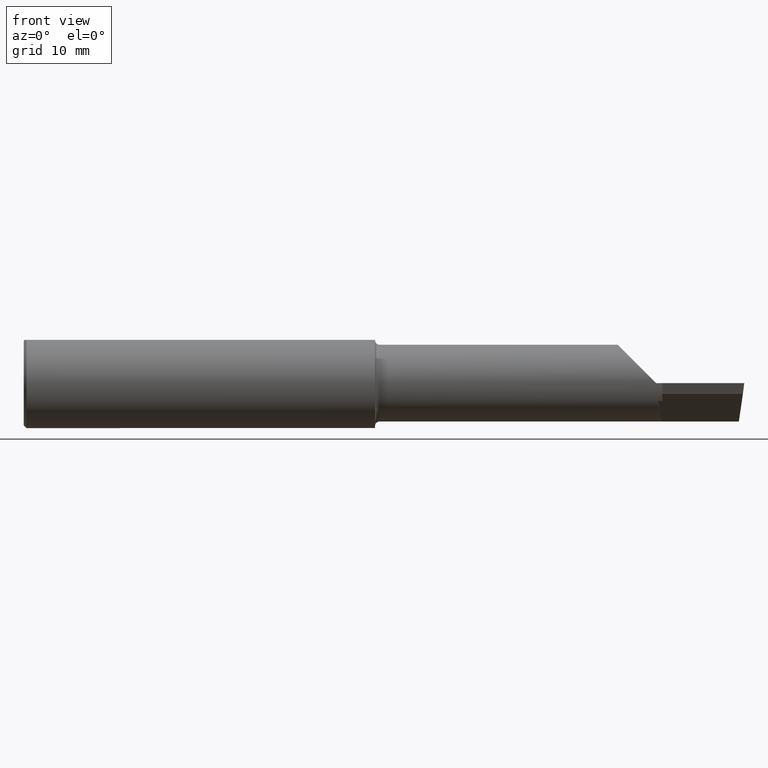
[diagram: clean part render]
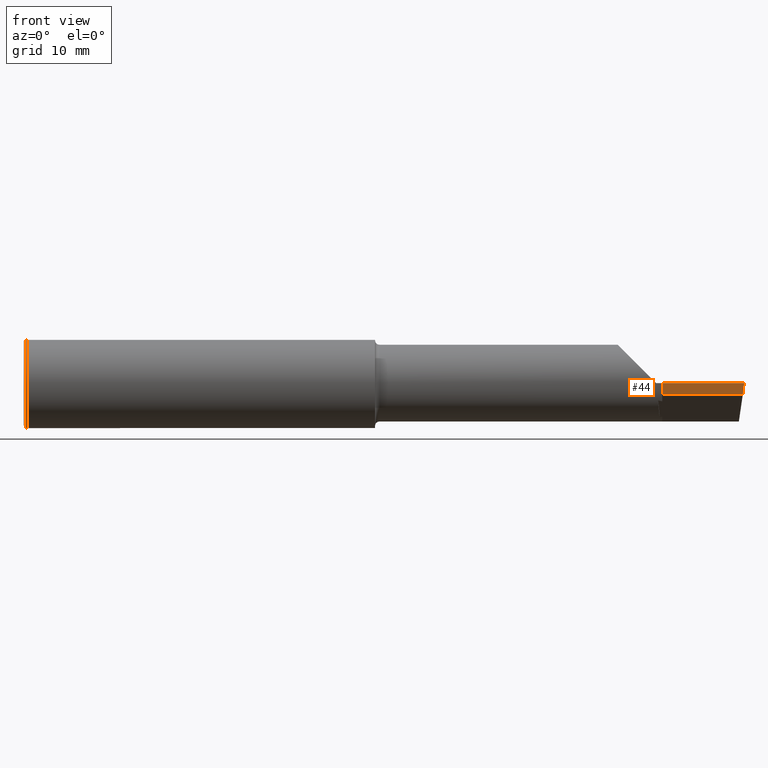
[diagram: same view with one face highlighted and labeled with its STEP entity id]
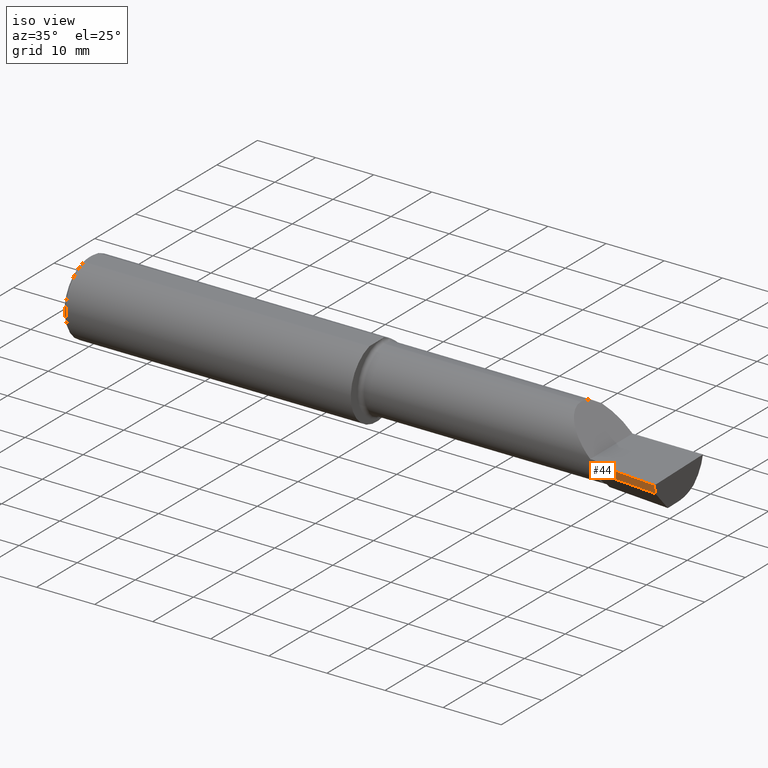
[diagram: same view with one face highlighted and labeled with its STEP entity id]
A machine part, front view. The second image highlights one B-rep face of the part: STEP entity #44.
A second angle (iso view) of the same face is appended — the face is thin or edge-on in the first view.
In plain terms, the highlighted planar face has unit normal (0.0914, 0.9493, 0.3007).
Its self-contained STEP definition (entity closure, byte-faithful):
#10 = EDGE_LOOP ( 'NONE', ( #661, #247, #233, #287 ) ) ;
#25 = CARTESIAN_POINT ( 'NONE',  ( 3.983858394183930063, -0.1964039090909503738, -0.1268853457175435906 ) ) ;
#32 = LINE ( 'NONE', #25, #100 ) ;
#44 = ADVANCED_FACE ( 'NONE', ( #699 ), #156, .F. ) ;
#52 = LINE ( 'NONE', #514, #190 ) ;
#78 = DIRECTION ( 'NONE',  ( 0.9953961983671787417, -0.09584575252022418945, -1.501092988330048720E-16 ) ) ;
#88 = EDGE_CURVE ( 'NONE', #609, #708, #52, .T. ) ;
#93 = EDGE_CURVE ( 'NONE', #609, #433, #217, .T. ) ;
#100 = VECTOR ( 'NONE', #684, 39.37007874015748854 ) ;
#105 = DIRECTION ( 'NONE',  ( 0.000000000000000000, -0.3019700370129918543, 0.9533174165755979867 ) ) ;
#156 = PLANE ( 'NONE',  #755 ) ;
#189 = CARTESIAN_POINT ( 'NONE',  ( 4.000000000000001776, -0.2381500000000004447, 4.609993489308444058E-16 ) ) ;
#190 = VECTOR ( 'NONE', #751, 39.37007874015748143 ) ;
#217 = LINE ( 'NONE', #401, #683 ) ;
#233 = ORIENTED_EDGE ( 'NONE', *, *, #93, .F. ) ;
#247 = ORIENTED_EDGE ( 'NONE', *, *, #307, .F. ) ;
#282 = CARTESIAN_POINT ( 'NONE',  ( 3.544999999999999929, -0.1753330585328637670, -0.06000000000000013656 ) ) ;
#283 = DIRECTION ( 'NONE',  ( 0.09140971883575742252, 0.9493262270931227542, 0.3007057995042739518 ) ) ;
#287 = ORIENTED_EDGE ( 'NONE', *, *, #88, .T. ) ;
#307 = EDGE_CURVE ( 'NONE', #433, #619, #723, .T. ) ;
#369 = CARTESIAN_POINT ( 'NONE',  ( 4.001130543297605868, -0.2382588589380726651, -1.367634472223958767E-16 ) ) ;
#397 = CARTESIAN_POINT ( 'NONE',  ( 3.519046046773248282, -0.1728339770796963881, -0.06000000000000012962 ) ) ;
#401 = CARTESIAN_POINT ( 'NONE',  ( 3.544999999999999929, -0.1952503421026562380, 0.002878732955684667853 ) ) ;
#433 = VERTEX_POINT ( 'NONE', #508 ) ;
#508 = CARTESIAN_POINT ( 'NONE',  ( 3.544999999999999929, -0.1943384830701201105, 4.684692457885201525E-16 ) ) ;
#510 = DIRECTION ( 'NONE',  ( 0.000000000000000000, -0.3019700370129918543, 0.9533174165755979867 ) ) ;
#514 = CARTESIAN_POINT ( 'NONE',  ( 3.519046046773248282, -0.1728339770796963881, -0.06000000000000012962 ) ) ;
#569 = VECTOR ( 'NONE', #78, 39.37007874015748143 ) ;
#609 = VERTEX_POINT ( 'NONE', #282 ) ;
#619 = VERTEX_POINT ( 'NONE', #189 ) ;
#661 = ORIENTED_EDGE ( 'NONE', *, *, #703, .F. ) ;
#683 = VECTOR ( 'NONE', #105, 39.37007874015748854 ) ;
#684 = DIRECTION ( 'NONE',  ( -0.1199690778467081415, 0.3102690083707256297, -0.9430485474275737134 ) ) ;
#699 = FACE_OUTER_BOUND ( 'NONE', #10, .T. ) ;
#703 = EDGE_CURVE ( 'NONE', #619, #708, #32, .T. ) ;
#708 = VERTEX_POINT ( 'NONE', #740 ) ;
#723 = LINE ( 'NONE', #369, #569 ) ;
#740 = CARTESIAN_POINT ( 'NONE',  ( 3.992367153641839472, -0.2184096159518785774, -0.06000000000000012268 ) ) ;
#751 = DIRECTION ( 'NONE',  ( 0.9953961983671787417, -0.09584575252022421721, -0.000000000000000000 ) ) ;
#755 = AXIS2_PLACEMENT_3D ( 'NONE', #397, #283, #510 ) ;